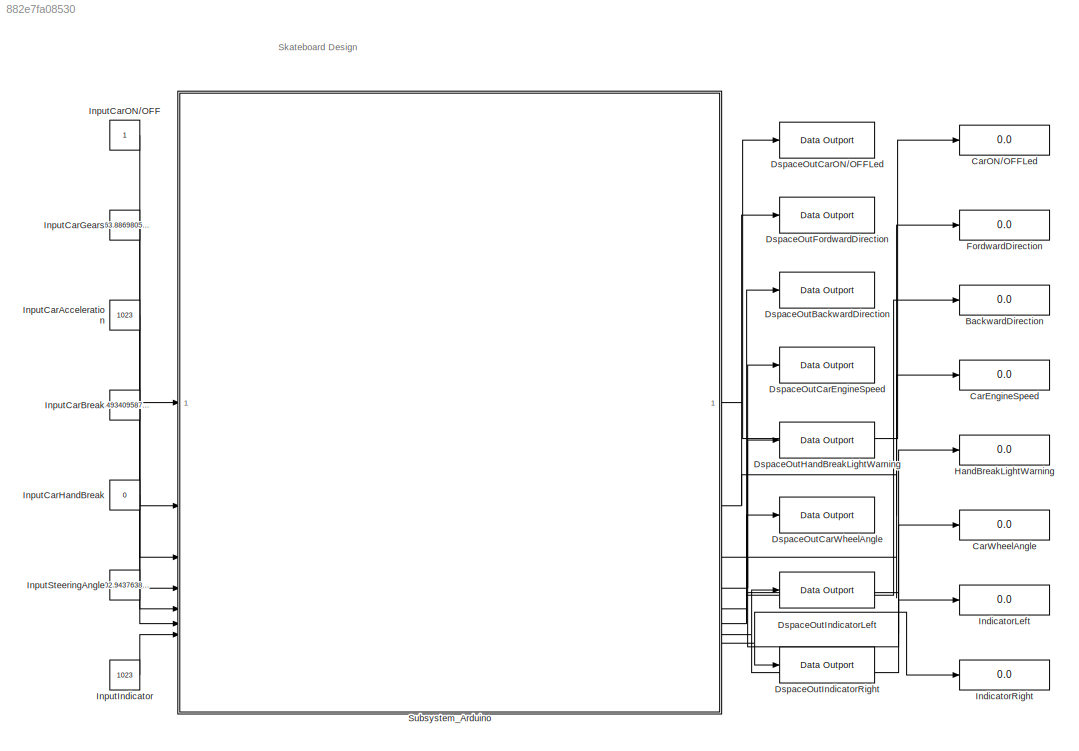
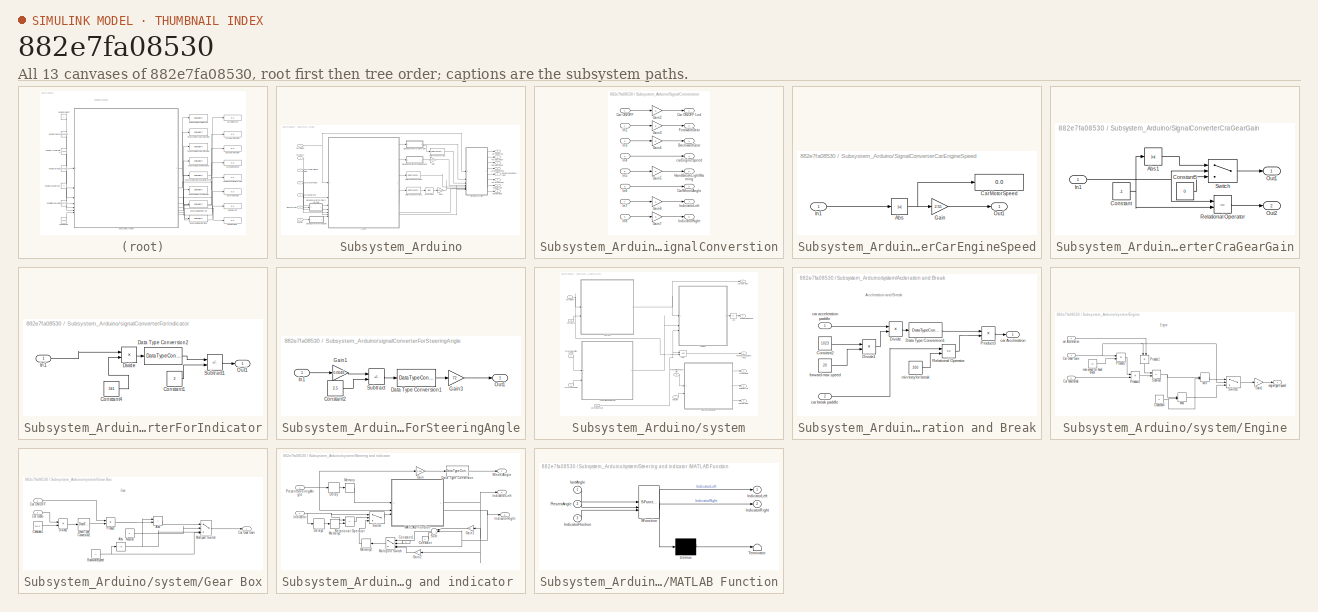
[diagram: thumbnail index - all 13 canvases of the model, root first then tree order]
MODEL slx_882e7fa08530
KIND model
CONFIG AbsTol = auto
CONFIG EnableMultiTasking = off
CONFIG FixedStep = 0.001
CONFIG InitFcn = , if any(exist('rtifpga_mdlclblib', 'file') ~= 0), rtifpga_mdlclblib('Init', bdroot); end,\n, if any(exist('dsmpb_private', 'file') ~= 0), dsmpb_private('dsmpb_mdlclblib', 'Init', bdroot); end,\n
CONFIG MaxStep = auto
CONFIG MinStep = auto
CONFIG PostLoadFcn = if any(exist('dsrtsu_mdlpostloadfcn', 'file') ~= 0), dsrtsu_mdlpostloadfcn('Execute', bdroot); end
CONFIG RelTol = 1e-3
CONFIG SampleTimeConstraint = Unconstrained
CONFIG SolverName = FixedStepAuto
CONFIG StartTime = 0.0
CONFIG StopTime = Inf
WORKSPACE source: mxarray member
WORKSPACE indicator = -1
BLOCK [Display] BackwardDirection
  Decimation = 1
BLOCK [Display] CarEngineSpeed
  Decimation = 1
BLOCK [Display] CarON//OFFLed
  Decimation = 1
BLOCK [Display] CarWheelAngle
  Decimation = 1
BLOCK [Reference] DspaceOutBackwardDirection  REF=dsmpblib/Data Outport
  Diagnostics = AllowInheritedTsInSrc
  Priority = -10000
  SourceBlock = dsmpblib/Data Outport
  SourceProductName = dSPACE Model Interface Package for Simulink (MIPS)
  SourceType = DataOutportBlock
  UserDataPersistent = on
BLOCK [Reference] DspaceOutCarEngineSpeed  REF=dsmpblib/Data Outport
  Diagnostics = AllowInheritedTsInSrc
  Priority = -10000
  SourceBlock = dsmpblib/Data Outport
  SourceProductName = dSPACE Model Interface Package for Simulink (MIPS)
  SourceType = DataOutportBlock
  UserDataPersistent = on
BLOCK [Reference] DspaceOutCarON//OFFLed  REF=dsmpblib/Data Outport
  Diagnostics = AllowInheritedTsInSrc
  Priority = -10000
  SourceBlock = dsmpblib/Data Outport
  SourceProductName = dSPACE Model Interface Package for Simulink (MIPS)
  SourceType = DataOutportBlock
  UserDataPersistent = on
BLOCK [Reference] DspaceOutCarWheelAngle  REF=dsmpblib/Data Outport
  Diagnostics = AllowInheritedTsInSrc
  Priority = -10000
  SourceBlock = dsmpblib/Data Outport
  SourceProductName = dSPACE Model Interface Package for Simulink (MIPS)
  SourceType = DataOutportBlock
  UserDataPersistent = on
BLOCK [Reference] DspaceOutFordwardDirection  REF=dsmpblib/Data Outport
  Diagnostics = AllowInheritedTsInSrc
  Priority = -10000
  SourceBlock = dsmpblib/Data Outport
  SourceProductName = dSPACE Model Interface Package for Simulink (MIPS)
  SourceType = DataOutportBlock
  UserDataPersistent = on
BLOCK [Reference] DspaceOutHandBreakLightWarning  REF=dsmpblib/Data Outport
  Diagnostics = AllowInheritedTsInSrc
  Priority = -10000
  SourceBlock = dsmpblib/Data Outport
  SourceProductName = dSPACE Model Interface Package for Simulink (MIPS)
  SourceType = DataOutportBlock
  UserDataPersistent = on
BLOCK [Reference] DspaceOutIndicatorLeft  REF=dsmpblib/Data Outport
  Diagnostics = AllowInheritedTsInSrc
  Priority = -10000
  SourceBlock = dsmpblib/Data Outport
  SourceProductName = dSPACE Model Interface Package for Simulink (MIPS)
  SourceType = DataOutportBlock
  UserDataPersistent = on
BLOCK [Reference] DspaceOutIndicatorRight  REF=dsmpblib/Data Outport
  Diagnostics = AllowInheritedTsInSrc
  Priority = -10000
  SourceBlock = dsmpblib/Data Outport
  SourceProductName = dSPACE Model Interface Package for Simulink (MIPS)
  SourceType = DataOutportBlock
  UserDataPersistent = on
BLOCK [Display] FordwardDirection
  Decimation = 1
BLOCK [Display] HandBreakLightWarning
  Decimation = 1
BLOCK [Display] IndicatorLeft
  Decimation = 1
BLOCK [Display] IndicatorRight
  Decimation = 1
BLOCK [Constant] InputCarAcceleration 
  Value = 1023
BLOCK [Constant] InputCarBreak
  Value = 0.4934095874931674
BLOCK [Constant] InputCarGears
  Value = 363.8869805539335
BLOCK [Constant] InputCarHandBreak
  Value = 0
BLOCK [Constant] InputCarON//OFF
BLOCK [Constant] InputIndicator
  Value = 1023
BLOCK [Constant] InputSteeringAngle
  Value = 902.9437638651494
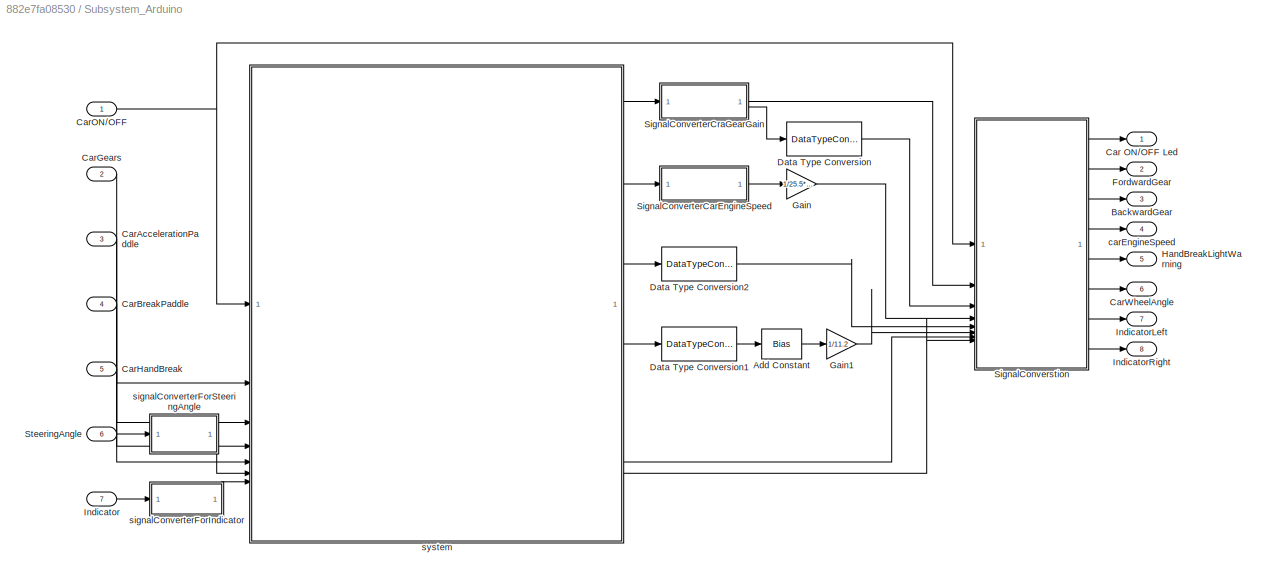
BLOCK [SubSystem] Subsystem_Arduino
BLOCK [Bias] Subsystem_Arduino/Add Constant
  Bias = 28
  SaturateOnIntegerOverflow = off
BLOCK [Outport] Subsystem_Arduino/BackwardGear
  Port = 3
BLOCK [Outport] Subsystem_Arduino/Car ON//OFF Led
BLOCK [Inport] Subsystem_Arduino/CarAccelerationPaddle
  Port = 3
BLOCK [Inport] Subsystem_Arduino/CarBreakPaddle
  Port = 4
BLOCK [Inport] Subsystem_Arduino/CarGears
  Port = 2
BLOCK [Inport] Subsystem_Arduino/CarHandBreak 
  Port = 5
BLOCK [Inport] Subsystem_Arduino/CarON//OFF
BLOCK [Outport] Subsystem_Arduino/CarWheelAngle
  Port = 6
BLOCK [DataTypeConversion] Subsystem_Arduino/Data Type Conversion
  RndMeth = Floor
  SaturateOnIntegerOverflow = off
BLOCK [DataTypeConversion] Subsystem_Arduino/Data Type Conversion1
  RndMeth = Floor
  SaturateOnIntegerOverflow = off
BLOCK [DataTypeConversion] Subsystem_Arduino/Data Type Conversion2
  RndMeth = Floor
  SaturateOnIntegerOverflow = off
BLOCK [Outport] Subsystem_Arduino/FordwardGear
  Port = 2
BLOCK [Gain] Subsystem_Arduino/Gain
  Gain = 1/25.5*0.5
BLOCK [Gain] Subsystem_Arduino/Gain1
  Gain = 1/11.2
BLOCK [Outport] Subsystem_Arduino/HandBreakLightWarning
  Port = 5
BLOCK [Inport] Subsystem_Arduino/Indicator
  Port = 7
BLOCK [Outport] Subsystem_Arduino/IndicatorLeft
  Port = 7
BLOCK [Outport] Subsystem_Arduino/IndicatorRight
  Port = 8
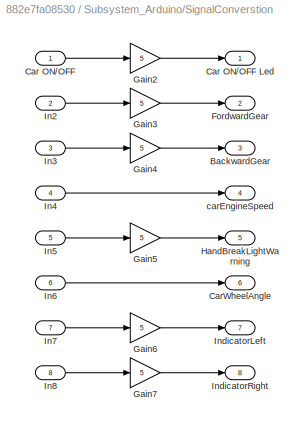
BLOCK [SubSystem] Subsystem_Arduino/SignalConverstion
BLOCK [Outport] Subsystem_Arduino/SignalConverstion/BackwardGear
  Port = 3
BLOCK [Inport] Subsystem_Arduino/SignalConverstion/Car ON//OFF
BLOCK [Outport] Subsystem_Arduino/SignalConverstion/Car ON//OFF Led
BLOCK [Outport] Subsystem_Arduino/SignalConverstion/CarWheelAngle
  Port = 6
BLOCK [Outport] Subsystem_Arduino/SignalConverstion/FordwardGear
  Port = 2
BLOCK [Gain] Subsystem_Arduino/SignalConverstion/Gain2
  Gain = 5
BLOCK [Gain] Subsystem_Arduino/SignalConverstion/Gain3
  Gain = 5
BLOCK [Gain] Subsystem_Arduino/SignalConverstion/Gain4
  Gain = 5
BLOCK [Gain] Subsystem_Arduino/SignalConverstion/Gain5
  Gain = 5
BLOCK [Gain] Subsystem_Arduino/SignalConverstion/Gain6
  Gain = 5
BLOCK [Gain] Subsystem_Arduino/SignalConverstion/Gain7
  Gain = 5
BLOCK [Outport] Subsystem_Arduino/SignalConverstion/HandBreakLightWarning
  Port = 5
BLOCK [Inport] Subsystem_Arduino/SignalConverstion/In2
  Port = 2
BLOCK [Inport] Subsystem_Arduino/SignalConverstion/In3
  Port = 3
BLOCK [Inport] Subsystem_Arduino/SignalConverstion/In4
  Port = 4
BLOCK [Inport] Subsystem_Arduino/SignalConverstion/In5
  Port = 5
BLOCK [Inport] Subsystem_Arduino/SignalConverstion/In6
  Port = 6
BLOCK [Inport] Subsystem_Arduino/SignalConverstion/In7
  Port = 7
BLOCK [Inport] Subsystem_Arduino/SignalConverstion/In8
  Port = 8
BLOCK [Outport] Subsystem_Arduino/SignalConverstion/IndicatorLeft
  Port = 7
BLOCK [Outport] Subsystem_Arduino/SignalConverstion/IndicatorRight
  Port = 8
BLOCK [Outport] Subsystem_Arduino/SignalConverstion/carEngineSpeed
  Port = 4
BLOCK [SubSystem] Subsystem_Arduino/SignalConverterCarEngineSpeed
BLOCK [Abs] Subsystem_Arduino/SignalConverterCarEngineSpeed/Abs
  SaturateOnIntegerOverflow = off
BLOCK [Display] Subsystem_Arduino/SignalConverterCarEngineSpeed/CarMotorSpeed
  Decimation = 1
BLOCK [Gain] Subsystem_Arduino/SignalConverterCarEngineSpeed/Gain
  Gain = 2.55
BLOCK [Inport] Subsystem_Arduino/SignalConverterCarEngineSpeed/In1
BLOCK [Outport] Subsystem_Arduino/SignalConverterCarEngineSpeed/Out1
BLOCK [SubSystem] Subsystem_Arduino/SignalConverterCraGearGain
BLOCK [Abs] Subsystem_Arduino/SignalConverterCraGearGain/Abs1
  SaturateOnIntegerOverflow = off
BLOCK [Constant] Subsystem_Arduino/SignalConverterCraGearGain/Constant
  Value = -1
BLOCK [Constant] Subsystem_Arduino/SignalConverterCraGearGain/Constant5
  Value = 0
BLOCK [Inport] Subsystem_Arduino/SignalConverterCraGearGain/In1
BLOCK [Outport] Subsystem_Arduino/SignalConverterCraGearGain/Out1
BLOCK [Outport] Subsystem_Arduino/SignalConverterCraGearGain/Out2
  Port = 2
BLOCK [RelationalOperator] Subsystem_Arduino/SignalConverterCraGearGain/Relational Operator
  InputSameDT = off
  Operator = ==
  OutDataTypeStr = boolean
  RndMeth = Simplest
BLOCK [Switch] Subsystem_Arduino/SignalConverterCraGearGain/Switch
  InputSameDT = off
  SaturateOnIntegerOverflow = off
  Threshold = 1
BLOCK [Inport] Subsystem_Arduino/SteeringAngle
  Port = 6
BLOCK [Outport] Subsystem_Arduino/carEngineSpeed
  Port = 4
BLOCK [SubSystem] Subsystem_Arduino/signalConverterForIndicator
BLOCK [Constant] Subsystem_Arduino/signalConverterForIndicator/Constant1
  Value = 2
BLOCK [Constant] Subsystem_Arduino/signalConverterForIndicator/Constant4
  Value = 341
BLOCK [DataTypeConversion] Subsystem_Arduino/signalConverterForIndicator/Data Type Conversion2
  ConvertRealWorld = Stored Integer (SI)
  OutDataTypeStr = int32
  RndMeth = Ceiling
  SaturateOnIntegerOverflow = off
BLOCK [Product] Subsystem_Arduino/signalConverterForIndicator/Divide
  Inputs = */
BLOCK [Inport] Subsystem_Arduino/signalConverterForIndicator/In1
BLOCK [Outport] Subsystem_Arduino/signalConverterForIndicator/Out1
BLOCK [Sum] Subsystem_Arduino/signalConverterForIndicator/Subtract1
  IconShape = rectangular
  Inputs = +-
BLOCK [SubSystem] Subsystem_Arduino/signalConverterForSteeringAngle
BLOCK [Constant] Subsystem_Arduino/signalConverterForSteeringAngle/Constant2
  Value = 2.5
BLOCK [DataTypeConversion] Subsystem_Arduino/signalConverterForSteeringAngle/Data Type Conversion1
  RndMeth = Floor
  SaturateOnIntegerOverflow = off
BLOCK [Gain] Subsystem_Arduino/signalConverterForSteeringAngle/Gain1
  Gain = 0.0049
BLOCK [Gain] Subsystem_Arduino/signalConverterForSteeringAngle/Gain3
  Gain = 72
BLOCK [Inport] Subsystem_Arduino/signalConverterForSteeringAngle/In1
BLOCK [Outport] Subsystem_Arduino/signalConverterForSteeringAngle/Out1
BLOCK [Sum] Subsystem_Arduino/signalConverterForSteeringAngle/Subtract
  IconShape = rectangular
  Inputs = +-
BLOCK [SubSystem] Subsystem_Arduino/system
BLOCK [Logic] Subsystem_Arduino/system/AND
  AllPortsSameDT = off
  IconShape = distinctive
  OutDataTypeStr = boolean
BLOCK [Abs] Subsystem_Arduino/system/Abs
  SaturateOnIntegerOverflow = off
BLOCK [SubSystem] Subsystem_Arduino/system/Accleration and Break
BLOCK [Constant] Subsystem_Arduino/system/Accleration and Break/Constant2
  Value = 1023
BLOCK [DataTypeConversion] Subsystem_Arduino/system/Accleration and Break/Data Type Conversion1
  OutDataTypeStr = uint16
  RndMeth = Floor
  SaturateOnIntegerOverflow = off
BLOCK [Product] Subsystem_Arduino/system/Accleration and Break/Divide
  Inputs = */
  RndMeth = Zero
  SaturateOnIntegerOverflow = on
BLOCK [Product] Subsystem_Arduino/system/Accleration and Break/Divide1
  Inputs = */
  RndMeth = Zero
  SaturateOnIntegerOverflow = on
BLOCK [Product] Subsystem_Arduino/system/Accleration and Break/Product3
BLOCK [RelationalOperator] Subsystem_Arduino/system/Accleration and Break/Relational Operator
  InputSameDT = off
  Operator = <=
  OutDataTypeStr = boolean
  RndMeth = Simplest
BLOCK [Outport] Subsystem_Arduino/system/Accleration and Break/car Accleration
BLOCK [Inport] Subsystem_Arduino/system/Accleration and Break/car acceleration paddle
BLOCK [Inport] Subsystem_Arduino/system/Accleration and Break/car break paddle
  NameLocation = top
  Port = 2
BLOCK [Constant] Subsystem_Arduino/system/Accleration and Break/forward max speed
  Value = 20
BLOCK [Constant] Subsystem_Arduino/system/Accleration and Break/min torq for break
  Value = 200
BLOCK [Inport] Subsystem_Arduino/system/Car Gears
  Port = 2
BLOCK [Inport] Subsystem_Arduino/system/Car ON//OFF
BLOCK [Inport] Subsystem_Arduino/system/Car hand break 
  Port = 5
BLOCK [Outport] Subsystem_Arduino/system/CarGearGain
BLOCK [SubSystem] Subsystem_Arduino/system/Engine
BLOCK [Inport] Subsystem_Arduino/system/Engine/Car Gear Gain
BLOCK [Inport] Subsystem_Arduino/system/Engine/Car hand break 
  Port = 3
BLOCK [Constant] Subsystem_Arduino/system/Engine/Constant4
  Value = 0
BLOCK [Gain] Subsystem_Arduino/system/Engine/Gain1
  Gain = 5
BLOCK [MinMax] Subsystem_Arduino/system/Engine/Max
  Inputs = 2
BLOCK [MinMax] Subsystem_Arduino/system/Engine/Min
  Function = max
  Inputs = 2
BLOCK [Product] Subsystem_Arduino/system/Engine/Product1
  NameLocation = left
BLOCK [Product] Subsystem_Arduino/system/Engine/Product2
BLOCK [Product] Subsystem_Arduino/system/Engine/Product4
BLOCK [Sum] Subsystem_Arduino/system/Engine/Subtract
  IconShape = rectangular
  Inputs = +-
BLOCK [Switch] Subsystem_Arduino/system/Engine/Switch1
  InputSameDT = off
  SaturateOnIntegerOverflow = off
BLOCK [Inport] Subsystem_Arduino/system/Engine/car Accleration
  Port = 2
BLOCK [Outport] Subsystem_Arduino/system/Engine/engine gain speed
BLOCK [Constant] Subsystem_Arduino/system/Engine/max speed for hand brack
  Value = 10
BLOCK [Outport] Subsystem_Arduino/system/EngineGainSpeed
  Port = 2
BLOCK [SubSystem] Subsystem_Arduino/system/Gear Box
BLOCK [Abs] Subsystem_Arduino/system/Gear Box/Abs
  SaturateOnIntegerOverflow = off
BLOCK [Sum] Subsystem_Arduino/system/Gear Box/Add
  IconShape = rectangular
BLOCK [Constant] Subsystem_Arduino/system/Gear Box/BackwardSpeed
  Value = -1
BLOCK [Outport] Subsystem_Arduino/system/Gear Box/Car Gear Gain
BLOCK [Inport] Subsystem_Arduino/system/Gear Box/Car Gears
  Port = 2
BLOCK [Inport] Subsystem_Arduino/system/Gear Box/Car ON//OFF
BLOCK [Constant] Subsystem_Arduino/system/Gear Box/Constant1
  Value = 511.5
BLOCK [DataTypeConversion] Subsystem_Arduino/system/Gear Box/Data Type Conversion2
  OutDataTypeStr = uint16
  RndMeth = Nearest
  SaturateOnIntegerOverflow = off
BLOCK [Product] Subsystem_Arduino/system/Gear Box/Divide2
  Inputs = */
  RndMeth = Zero
  SaturateOnIntegerOverflow = on
BLOCK [MultiPortSwitch] Subsystem_Arduino/system/Gear Box/Multiport Switch
  InputSameDT = off
  SaturateOnIntegerOverflow = off
BLOCK [Constant] Subsystem_Arduino/system/Gear Box/Neutral
  Value = 0
BLOCK [Product] Subsystem_Arduino/system/Gear Box/Product
BLOCK [Outport] Subsystem_Arduino/system/HandBreakLightWarning
  Port = 3
BLOCK [Inport] Subsystem_Arduino/system/Indicator
  Port = 7
BLOCK [Outport] Subsystem_Arduino/system/IndicatorLeft
  NameLocation = top
  Port = 5
BLOCK [Outport] Subsystem_Arduino/system/IndicatorRight
  Port = 6
BLOCK [Inport] Subsystem_Arduino/system/PresentSteeringAngle
  Port = 6
BLOCK [SubSystem] Subsystem_Arduino/system/Steering and indicator 
BLOCK [Constant] Subsystem_Arduino/system/Steering and indicator /Constant
BLOCK [Constant] Subsystem_Arduino/system/Steering and indicator /Constant1
  NameLocation = top
  Value = 0
BLOCK [DataTypeConversion] Subsystem_Arduino/system/Steering and indicator /Data Type Conversion
  OutDataTypeStr = int32
  RndMeth = Floor
  SaturateOnIntegerOverflow = off
BLOCK [Delay] Subsystem_Arduino/system/Steering and indicator /Delay
  DelayLength = 1500
  InputPortMap = u0
BLOCK [Delay] Subsystem_Arduino/system/Steering and indicator /Delay1
  DelayLength = 1500
  InputPortMap = u0
BLOCK [Gain] Subsystem_Arduino/system/Steering and indicator /Gain
  Gain = 0.155
BLOCK [Gain] Subsystem_Arduino/system/Steering and indicator /Gain1
  Gain = 2
  NameLocation = top
BLOCK [Gain] Subsystem_Arduino/system/Steering and indicator /Gain2
  Gain = -1
  NameLocation = top
BLOCK [Inport] Subsystem_Arduino/system/Steering and indicator /Indicator
  Port = 2
BLOCK [Outport] Subsystem_Arduino/system/Steering and indicator /IndicatorLeft
  Port = 2
BLOCK [Outport] Subsystem_Arduino/system/Steering and indicator /IndicatorRight
  Port = 3
BLOCK [SubSystem] Subsystem_Arduino/system/Steering and indicator /MATLAB Function
  ErrorFcn = Stateflow.Translate.translate
  PermitHierarchicalResolution = ExplicitOnly
  SFBlockType = MATLAB Function
  TreatAsAtomicUnit = on
BLOCK [Demux] Subsystem_Arduino/system/Steering and indicator /MATLAB Function/ Demux 
  Outputs = 1
BLOCK [S-Function] Subsystem_Arduino/system/Steering and indicator /MATLAB Function/ SFunction 
  EnableBusSupport = on
  FunctionName = sf_sfun
  PortCounts = [3 3]
  SFcnIsStateOwnerBlock = off
  SFunctionDeploymentMode = off
  Tag = Stateflow S-Function 2
BLOCK [Terminator] Subsystem_Arduino/system/Steering and indicator /MATLAB Function/ Terminator 
BLOCK [Outport] Subsystem_Arduino/system/Steering and indicator /MATLAB Function/IndicatorLeft
BLOCK [Inport] Subsystem_Arduino/system/Steering and indicator /MATLAB Function/IndicatorPosition
  Port = 3
BLOCK [Outport] Subsystem_Arduino/system/Steering and indicator /MATLAB Function/IndicatorRight
  Port = 2
BLOCK [Inport] Subsystem_Arduino/system/Steering and indicator /MATLAB Function/PresentAngle
  Port = 2
BLOCK [Inport] Subsystem_Arduino/system/Steering and indicator /MATLAB Function/lastAngle
BLOCK [Memory] Subsystem_Arduino/system/Steering and indicator /Memory
BLOCK [Memory] Subsystem_Arduino/system/Steering and indicator /Memory1
BLOCK [Memory] Subsystem_Arduino/system/Steering and indicator /Memory2
  NameLocation = top
BLOCK [MultiPortSwitch] Subsystem_Arduino/system/Steering and indicator /Multiport Switch
  InputSameDT = off
  NameLocation = top
  SaturateOnIntegerOverflow = off
BLOCK [Inport] Subsystem_Arduino/system/Steering and indicator /PresentSteeringAngle
BLOCK [RelationalOperator] Subsystem_Arduino/system/Steering and indicator /Relational Operator
  InputSameDT = off
  Operator = ~=
  OutDataTypeStr = boolean
  RndMeth = Simplest
BLOCK [Sum] Subsystem_Arduino/system/Steering and indicator /Sum
  Inputs = |+++
  NameLocation = top
BLOCK [Switch] Subsystem_Arduino/system/Steering and indicator /Switch
  InputSameDT = off
  SaturateOnIntegerOverflow = off
  Threshold = 1
BLOCK [Outport] Subsystem_Arduino/system/Steering and indicator /WheelAngle
BLOCK [Outport] Subsystem_Arduino/system/WheelAngle
  Port = 4
BLOCK [Inport] Subsystem_Arduino/system/car acceleration paddle
  Port = 3
BLOCK [Inport] Subsystem_Arduino/system/car break paddle
  Port = 4
ANNOTATION (root): Skateboard Design
ANNOTATION Subsystem_Arduino/system/Accleration and Break: Accleration and Break
ANNOTATION Subsystem_Arduino/system/Engine: Engine
ANNOTATION Subsystem_Arduino/system/Gear Box: Gear
LINE InputCarAcceleration :1 -> Subsystem_Arduino:3
LINE InputCarBreak:1 -> Subsystem_Arduino:4
LINE InputCarGears:1 -> Subsystem_Arduino:2
LINE InputCarHandBreak:1 -> Subsystem_Arduino:5
LINE InputCarON//OFF:1 -> Subsystem_Arduino:1
LINE InputIndicator:1 -> Subsystem_Arduino:7
LINE InputSteeringAngle:1 -> Subsystem_Arduino:6
LINE Subsystem_Arduino/Add Constant:1 -> Subsystem_Arduino/Gain1:1
LINE Subsystem_Arduino/CarAccelerationPaddle:1 -> Subsystem_Arduino/system:3
LINE Subsystem_Arduino/CarBreakPaddle:1 -> Subsystem_Arduino/system:4
LINE Subsystem_Arduino/CarGears:1 -> Subsystem_Arduino/system:2
LINE Subsystem_Arduino/CarHandBreak :1 -> Subsystem_Arduino/system:5
NET Subsystem_Arduino/CarON//OFF:1 -> Subsystem_Arduino/SignalConverstion:1, Subsystem_Arduino/system:1
LINE Subsystem_Arduino/Data Type Conversion1:1 -> Subsystem_Arduino/Add Constant:1
LINE Subsystem_Arduino/Data Type Conversion2:1 -> Subsystem_Arduino/SignalConverstion:5
LINE Subsystem_Arduino/Data Type Conversion:1 -> Subsystem_Arduino/SignalConverstion:3
LINE Subsystem_Arduino/Gain1:1 -> Subsystem_Arduino/SignalConverstion:6
LINE Subsystem_Arduino/Gain:1 -> Subsystem_Arduino/SignalConverstion:4
LINE Subsystem_Arduino/Indicator:1 -> Subsystem_Arduino/signalConverterForIndicator:1
LINE Subsystem_Arduino/SignalConverstion/Car ON//OFF:1 -> Subsystem_Arduino/SignalConverstion/Gain2:1
LINE Subsystem_Arduino/SignalConverstion/Gain2:1 -> Subsystem_Arduino/SignalConverstion/Car ON//OFF Led:1
LINE Subsystem_Arduino/SignalConverstion/Gain3:1 -> Subsystem_Arduino/SignalConverstion/FordwardGear:1
LINE Subsystem_Arduino/SignalConverstion/Gain4:1 -> Subsystem_Arduino/SignalConverstion/BackwardGear:1
LINE Subsystem_Arduino/SignalConverstion/Gain5:1 -> Subsystem_Arduino/SignalConverstion/HandBreakLightWarning:1
LINE Subsystem_Arduino/SignalConverstion/Gain6:1 -> Subsystem_Arduino/SignalConverstion/IndicatorLeft:1
LINE Subsystem_Arduino/SignalConverstion/Gain7:1 -> Subsystem_Arduino/SignalConverstion/IndicatorRight:1
LINE Subsystem_Arduino/SignalConverstion/In2:1 -> Subsystem_Arduino/SignalConverstion/Gain3:1
LINE Subsystem_Arduino/SignalConverstion/In3:1 -> Subsystem_Arduino/SignalConverstion/Gain4:1
LINE Subsystem_Arduino/SignalConverstion/In4:1 -> Subsystem_Arduino/SignalConverstion/carEngineSpeed:1
LINE Subsystem_Arduino/SignalConverstion/In5:1 -> Subsystem_Arduino/SignalConverstion/Gain5:1
LINE Subsystem_Arduino/SignalConverstion/In6:1 -> Subsystem_Arduino/SignalConverstion/CarWheelAngle:1
LINE Subsystem_Arduino/SignalConverstion/In7:1 -> Subsystem_Arduino/SignalConverstion/Gain6:1
LINE Subsystem_Arduino/SignalConverstion/In8:1 -> Subsystem_Arduino/SignalConverstion/Gain7:1
LINE Subsystem_Arduino/SignalConverstion:1 -> Subsystem_Arduino/Car ON//OFF Led:1
LINE Subsystem_Arduino/SignalConverstion:2 -> Subsystem_Arduino/FordwardGear:1
LINE Subsystem_Arduino/SignalConverstion:3 -> Subsystem_Arduino/BackwardGear:1
LINE Subsystem_Arduino/SignalConverstion:4 -> Subsystem_Arduino/carEngineSpeed:1
LINE Subsystem_Arduino/SignalConverstion:5 -> Subsystem_Arduino/HandBreakLightWarning:1
LINE Subsystem_Arduino/SignalConverstion:6 -> Subsystem_Arduino/CarWheelAngle:1
LINE Subsystem_Arduino/SignalConverstion:7 -> Subsystem_Arduino/IndicatorLeft:1
LINE Subsystem_Arduino/SignalConverstion:8 -> Subsystem_Arduino/IndicatorRight:1
NET Subsystem_Arduino/SignalConverterCarEngineSpeed/Abs:1 -> Subsystem_Arduino/SignalConverterCarEngineSpeed/CarMotorSpeed:1, Subsystem_Arduino/SignalConverterCarEngineSpeed/Gain:1
LINE Subsystem_Arduino/SignalConverterCarEngineSpeed/Gain:1 -> Subsystem_Arduino/SignalConverterCarEngineSpeed/Out1:1
LINE Subsystem_Arduino/SignalConverterCarEngineSpeed/In1:1 -> Subsystem_Arduino/SignalConverterCarEngineSpeed/Abs:1
LINE Subsystem_Arduino/SignalConverterCarEngineSpeed:1 -> Subsystem_Arduino/Gain:1
LINE Subsystem_Arduino/SignalConverterCraGearGain/Abs1:1 -> Subsystem_Arduino/SignalConverterCraGearGain/Switch:1
LINE Subsystem_Arduino/SignalConverterCraGearGain/Constant5:1 -> Subsystem_Arduino/SignalConverterCraGearGain/Switch:3
NET Subsystem_Arduino/SignalConverterCraGearGain/Constant:1 -> Subsystem_Arduino/SignalConverterCraGearGain/Abs1:1, Subsystem_Arduino/SignalConverterCraGearGain/Relational Operator:2
NET Subsystem_Arduino/SignalConverterCraGearGain/In1:1 -> Subsystem_Arduino/SignalConverterCraGearGain/Relational Operator:1, Subsystem_Arduino/SignalConverterCraGearGain/Switch:2
LINE Subsystem_Arduino/SignalConverterCraGearGain/Relational Operator:1 -> Subsystem_Arduino/SignalConverterCraGearGain/Out2:1
LINE Subsystem_Arduino/SignalConverterCraGearGain/Switch:1 -> Subsystem_Arduino/SignalConverterCraGearGain/Out1:1
LINE Subsystem_Arduino/SignalConverterCraGearGain:1 -> Subsystem_Arduino/SignalConverstion:2
LINE Subsystem_Arduino/SignalConverterCraGearGain:2 -> Subsystem_Arduino/Data Type Conversion:1
LINE Subsystem_Arduino/SteeringAngle:1 -> Subsystem_Arduino/signalConverterForSteeringAngle:1
LINE Subsystem_Arduino/signalConverterForIndicator/Constant1:1 -> Subsystem_Arduino/signalConverterForIndicator/Subtract1:2
LINE Subsystem_Arduino/signalConverterForIndicator/Constant4:1 -> Subsystem_Arduino/signalConverterForIndicator/Divide:2
LINE Subsystem_Arduino/signalConverterForIndicator/Data Type Conversion2:1 -> Subsystem_Arduino/signalConverterForIndicator/Subtract1:1
LINE Subsystem_Arduino/signalConverterForIndicator/Divide:1 -> Subsystem_Arduino/signalConverterForIndicator/Data Type Conversion2:1
LINE Subsystem_Arduino/signalConverterForIndicator/In1:1 -> Subsystem_Arduino/signalConverterForIndicator/Divide:1
LINE Subsystem_Arduino/signalConverterForIndicator/Subtract1:1 -> Subsystem_Arduino/signalConverterForIndicator/Out1:1
LINE Subsystem_Arduino/signalConverterForIndicator:1 -> Subsystem_Arduino/system:7
LINE Subsystem_Arduino/signalConverterForSteeringAngle/Constant2:1 -> Subsystem_Arduino/signalConverterForSteeringAngle/Subtract:2
LINE Subsystem_Arduino/signalConverterForSteeringAngle/Data Type Conversion1:1 -> Subsystem_Arduino/signalConverterForSteeringAngle/Gain3:1
LINE Subsystem_Arduino/signalConverterForSteeringAngle/Gain1:1 -> Subsystem_Arduino/signalConverterForSteeringAngle/Subtract:1
LINE Subsystem_Arduino/signalConverterForSteeringAngle/Gain3:1 -> Subsystem_Arduino/signalConverterForSteeringAngle/Out1:1
LINE Subsystem_Arduino/signalConverterForSteeringAngle/In1:1 -> Subsystem_Arduino/signalConverterForSteeringAngle/Gain1:1
LINE Subsystem_Arduino/signalConverterForSteeringAngle/Subtract:1 -> Subsystem_Arduino/signalConverterForSteeringAngle/Data Type Conversion1:1
LINE Subsystem_Arduino/signalConverterForSteeringAngle:1 -> Subsystem_Arduino/system:6
LINE Subsystem_Arduino/system/AND:1 -> Subsystem_Arduino/system/HandBreakLightWarning:1
LINE Subsystem_Arduino/system/Abs:1 -> Subsystem_Arduino/system/EngineGainSpeed:1
LINE Subsystem_Arduino/system/Accleration and Break/Constant2:1 -> Subsystem_Arduino/system/Accleration and Break/Divide1:1
LINE Subsystem_Arduino/system/Accleration and Break/Data Type Conversion1:1 -> Subsystem_Arduino/system/Accleration and Break/Product3:1
LINE Subsystem_Arduino/system/Accleration and Break/Divide1:1 -> Subsystem_Arduino/system/Accleration and Break/Divide:2
LINE Subsystem_Arduino/system/Accleration and Break/Divide:1 -> Subsystem_Arduino/system/Accleration and Break/Data Type Conversion1:1
LINE Subsystem_Arduino/system/Accleration and Break/Product3:1 -> Subsystem_Arduino/system/Accleration and Break/car Accleration:1
LINE Subsystem_Arduino/system/Accleration and Break/Relational Operator:1 -> Subsystem_Arduino/system/Accleration and Break/Product3:2
LINE Subsystem_Arduino/system/Accleration and Break/car acceleration paddle:1 -> Subsystem_Arduino/system/Accleration and Break/Divide:1
LINE Subsystem_Arduino/system/Accleration and Break/car break paddle:1 -> Subsystem_Arduino/system/Accleration and Break/Relational Operator:1
LINE Subsystem_Arduino/system/Accleration and Break/forward max speed:1 -> Subsystem_Arduino/system/Accleration and Break/Divide1:2
LINE Subsystem_Arduino/system/Accleration and Break/min torq for break:1 -> Subsystem_Arduino/system/Accleration and Break/Relational Operator:2
LINE Subsystem_Arduino/system/Accleration and Break:1 -> Subsystem_Arduino/system/Engine:2
LINE Subsystem_Arduino/system/Car Gears:1 -> Subsystem_Arduino/system/Gear Box:2
NET Subsystem_Arduino/system/Car ON//OFF:1 -> Subsystem_Arduino/system/AND:2, Subsystem_Arduino/system/Gear Box:1
NET Subsystem_Arduino/system/Car hand break :1 -> Subsystem_Arduino/system/AND:1, Subsystem_Arduino/system/Engine:3
NET Subsystem_Arduino/system/Engine/Car Gear Gain:1 -> Subsystem_Arduino/system/Engine/Product1:1, Subsystem_Arduino/system/Engine/Product2:1, Subsystem_Arduino/system/Engine/Switch1:2
LINE Subsystem_Arduino/system/Engine/Car hand break :1 -> Subsystem_Arduino/system/Engine/Product4:2
NET Subsystem_Arduino/system/Engine/Constant4:1 -> Subsystem_Arduino/system/Engine/Max:2, Subsystem_Arduino/system/Engine/Min:2
LINE Subsystem_Arduino/system/Engine/Gain1:1 -> Subsystem_Arduino/system/Engine/engine gain speed:1
LINE Subsystem_Arduino/system/Engine/Max:1 -> Subsystem_Arduino/system/Engine/Switch1:3
LINE Subsystem_Arduino/system/Engine/Min:1 -> Subsystem_Arduino/system/Engine/Switch1:1
LINE Subsystem_Arduino/system/Engine/Product1:1 -> Subsystem_Arduino/system/Engine/Subtract:1
LINE Subsystem_Arduino/system/Engine/Product2:1 -> Subsystem_Arduino/system/Engine/Product4:1
LINE Subsystem_Arduino/system/Engine/Product4:1 -> Subsystem_Arduino/system/Engine/Subtract:2
NET Subsystem_Arduino/system/Engine/Subtract:1 -> Subsystem_Arduino/system/Engine/Max:1, Subsystem_Arduino/system/Engine/Min:1
LINE Subsystem_Arduino/system/Engine/Switch1:1 -> Subsystem_Arduino/system/Engine/Gain1:1
LINE Subsystem_Arduino/system/Engine/car Accleration:1 -> Subsystem_Arduino/system/Engine/Product1:2
LINE Subsystem_Arduino/system/Engine/max speed for hand brack:1 -> Subsystem_Arduino/system/Engine/Product2:2
LINE Subsystem_Arduino/system/Engine:1 -> Subsystem_Arduino/system/Abs:1
NET Subsystem_Arduino/system/Gear Box/Abs:1 -> Subsystem_Arduino/system/Gear Box/Add:1, Subsystem_Arduino/system/Gear Box/Multiport Switch:3
LINE Subsystem_Arduino/system/Gear Box/Add:1 -> Subsystem_Arduino/system/Gear Box/Multiport Switch:1
NET Subsystem_Arduino/system/Gear Box/BackwardSpeed:1 -> Subsystem_Arduino/system/Gear Box/Abs:1, Subsystem_Arduino/system/Gear Box/Multiport Switch:4
LINE Subsystem_Arduino/system/Gear Box/Car Gears:1 -> Subsystem_Arduino/system/Gear Box/Divide2:1
LINE Subsystem_Arduino/system/Gear Box/Car ON//OFF:1 -> Subsystem_Arduino/system/Gear Box/Product:1
LINE Subsystem_Arduino/system/Gear Box/Constant1:1 -> Subsystem_Arduino/system/Gear Box/Divide2:2
LINE Subsystem_Arduino/system/Gear Box/Data Type Conversion2:1 -> Subsystem_Arduino/system/Gear Box/Product:2
LINE Subsystem_Arduino/system/Gear Box/Divide2:1 -> Subsystem_Arduino/system/Gear Box/Data Type Conversion2:1
LINE Subsystem_Arduino/system/Gear Box/Multiport Switch:1 -> Subsystem_Arduino/system/Gear Box/Car Gear Gain:1
LINE Subsystem_Arduino/system/Gear Box/Neutral:1 -> Subsystem_Arduino/system/Gear Box/Multiport Switch:2
LINE Subsystem_Arduino/system/Gear Box/Product:1 -> Subsystem_Arduino/system/Gear Box/Add:2
NET Subsystem_Arduino/system/Gear Box:1 -> Subsystem_Arduino/system/CarGearGain:1, Subsystem_Arduino/system/Engine:1
LINE Subsystem_Arduino/system/Indicator:1 -> Subsystem_Arduino/system/Steering and indicator :2
LINE Subsystem_Arduino/system/PresentSteeringAngle:1 -> Subsystem_Arduino/system/Steering and indicator :1
LINE Subsystem_Arduino/system/Steering and indicator /Constant1:1 -> Subsystem_Arduino/system/Steering and indicator /Multiport Switch:2
LINE Subsystem_Arduino/system/Steering and indicator /Constant:1 -> Subsystem_Arduino/system/Steering and indicator /Sum:3
LINE Subsystem_Arduino/system/Steering and indicator /Data Type Conversion:1 -> Subsystem_Arduino/system/Steering and indicator /WheelAngle:1
LINE Subsystem_Arduino/system/Steering and indicator /Delay1:1 -> Subsystem_Arduino/system/Steering and indicator /Memory1:1
LINE Subsystem_Arduino/system/Steering and indicator /Delay:1 -> Subsystem_Arduino/system/Steering and indicator /Memory:1
LINE Subsystem_Arduino/system/Steering and indicator /Gain1:1 -> Subsystem_Arduino/system/Steering and indicator /Sum:1
LINE Subsystem_Arduino/system/Steering and indicator /Gain2:1 -> Subsystem_Arduino/system/Steering and indicator /Multiport Switch:4
LINE Subsystem_Arduino/system/Steering and indicator /Gain:1 -> Subsystem_Arduino/system/Steering and indicator /Data Type Conversion:1
NET Subsystem_Arduino/system/Steering and indicator /Indicator:1 -> Subsystem_Arduino/system/Steering and indicator /Delay1:1, Subsystem_Arduino/system/Steering and indicator /Relational Operator:1, Subsystem_Arduino/system/Steering and indicator /Switch:1
NET Subsystem_Arduino/system/Steering and indicator /MATLAB Function:1 -> Subsystem_Arduino/system/Steering and indicator /Gain1:1, Subsystem_Arduino/system/Steering and indicator /Gain2:1, Subsystem_Arduino/system/Steering and indicator /IndicatorLeft:1
NET Subsystem_Arduino/system/Steering and indicator /MATLAB Function:2 -> Subsystem_Arduino/system/Steering and indicator /IndicatorRight:1, Subsystem_Arduino/system/Steering and indicator /Multiport Switch:3, Subsystem_Arduino/system/Steering and indicator /Sum:2
LINE Subsystem_Arduino/system/Steering and indicator /Memory1:1 -> Subsystem_Arduino/system/Steering and indicator /Relational Operator:2
LINE Subsystem_Arduino/system/Steering and indicator /Memory2:1 -> Subsystem_Arduino/system/Steering and indicator /Switch:3
LINE Subsystem_Arduino/system/Steering and indicator /Memory:1 -> Subsystem_Arduino/system/Steering and indicator /MATLAB Function:1
LINE Subsystem_Arduino/system/Steering and indicator /Multiport Switch:1 -> Subsystem_Arduino/system/Steering and indicator /Memory2:1
NET Subsystem_Arduino/system/Steering and indicator /PresentSteeringAngle:1 -> Subsystem_Arduino/system/Steering and indicator /Delay:1, Subsystem_Arduino/system/Steering and indicator /Gain:1, Subsystem_Arduino/system/Steering and indicator /MATLAB Function:2
LINE Subsystem_Arduino/system/Steering and indicator /Relational Operator:1 -> Subsystem_Arduino/system/Steering and indicator /Switch:2
LINE Subsystem_Arduino/system/Steering and indicator /Sum:1 -> Subsystem_Arduino/system/Steering and indicator /Multiport Switch:1
LINE Subsystem_Arduino/system/Steering and indicator /Switch:1 -> Subsystem_Arduino/system/Steering and indicator /MATLAB Function:3
LINE Subsystem_Arduino/system/Steering and indicator :1 -> Subsystem_Arduino/system/WheelAngle:1
LINE Subsystem_Arduino/system/Steering and indicator :2 -> Subsystem_Arduino/system/IndicatorLeft:1
LINE Subsystem_Arduino/system/Steering and indicator :3 -> Subsystem_Arduino/system/IndicatorRight:1
LINE Subsystem_Arduino/system/car acceleration paddle:1 -> Subsystem_Arduino/system/Accleration and Break:1
LINE Subsystem_Arduino/system/car break paddle:1 -> Subsystem_Arduino/system/Accleration and Break:2
LINE Subsystem_Arduino/system:1 -> Subsystem_Arduino/SignalConverterCraGearGain:1
LINE Subsystem_Arduino/system:2 -> Subsystem_Arduino/SignalConverterCarEngineSpeed:1
LINE Subsystem_Arduino/system:3 -> Subsystem_Arduino/Data Type Conversion2:1
LINE Subsystem_Arduino/system:4 -> Subsystem_Arduino/Data Type Conversion1:1
LINE Subsystem_Arduino/system:5 -> Subsystem_Arduino/SignalConverstion:7
LINE Subsystem_Arduino/system:6 -> Subsystem_Arduino/SignalConverstion:8
NET Subsystem_Arduino:1 -> CarON//OFFLed:1, DspaceOutCarON//OFFLed:1
NET Subsystem_Arduino:2 -> DspaceOutFordwardDirection:1, FordwardDirection:1
NET Subsystem_Arduino:3 -> BackwardDirection:1, DspaceOutBackwardDirection:1
NET Subsystem_Arduino:4 -> CarEngineSpeed:1, DspaceOutCarEngineSpeed:1
NET Subsystem_Arduino:5 -> DspaceOutHandBreakLightWarning:1, HandBreakLightWarning:1
NET Subsystem_Arduino:6 -> CarWheelAngle:1, DspaceOutCarWheelAngle:1
NET Subsystem_Arduino:7 -> DspaceOutIndicatorLeft:1, IndicatorLeft:1
NET Subsystem_Arduino:8 -> DspaceOutIndicatorRight:1, IndicatorRight:1
note: NET lines group one-source signal fan-out (src -> all destinations, sorted); 1:1 wires keep LINE
CHART Subsystem_Arduino/system/Steering and indicator /MATLAB Function states=1 transitions=1
  STATE_LABEL 'eML_blk_kernel()'
  STATE_LABEL 'SCRIPT:\nfunction [IndicatorLeft, IndicatorRight] = fcn(lastAngle, PresentAngle, IndicatorPosition)\n    % Determine the turning direction\n    turning = 0;\n    if PresentAngle> lastAngle \n        turning = 1; % Turning right\n    elseif PresentAngle< lastAngle \n        turning = -1; % Turning left\n    end\n    \n    % Update the indicator position based on the turning direction\n    if IndicatorPosition...<+546ch>'
CHART  states=0 transitions=0
